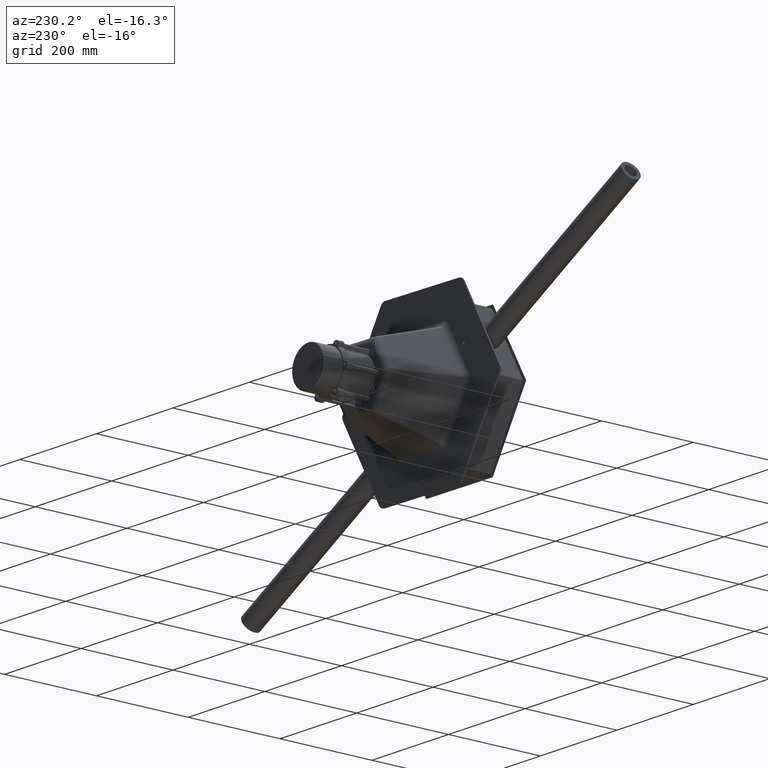
[diagram: clean part render]
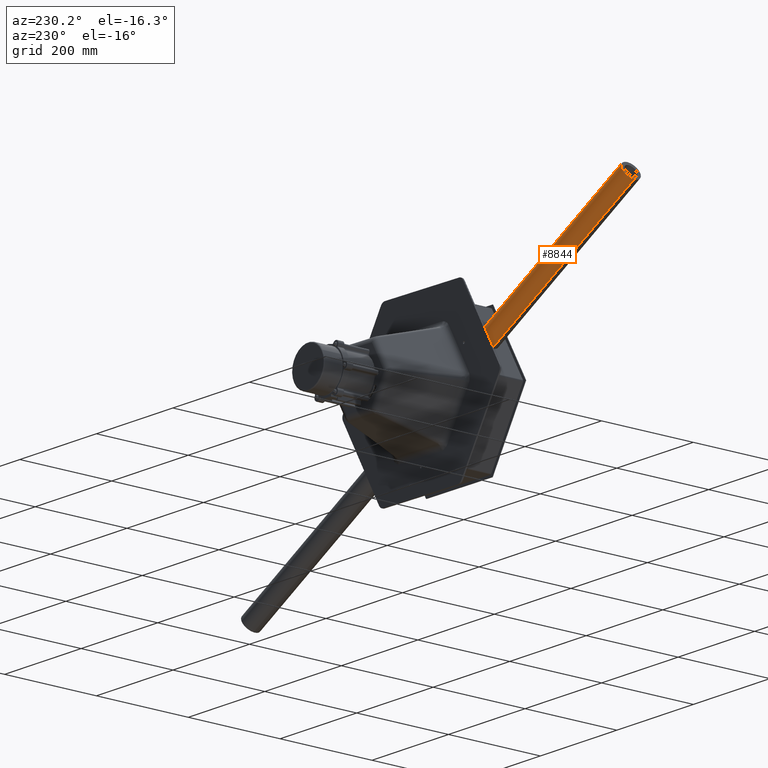
[diagram: same view with one face highlighted and labeled with its STEP entity id]
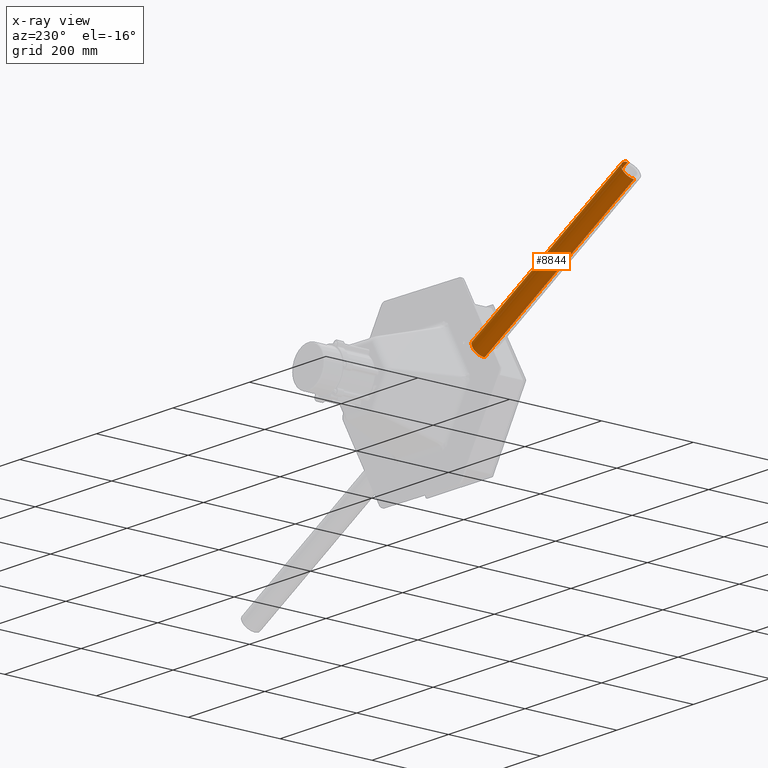
[diagram: x-ray of the same camera — body ghosted, the highlighted face saturated]
A machine part, auxiliary view. The second image highlights one B-rep face of the part: STEP entity #8844.
The next image is the same camera in x-ray: the body ghosted, the highlighted face saturated — about 0% of this face is hidden behind the body in this view.
In plain terms, the highlighted cylindrical surface (edge-blend (fillet) strip) has radius 20 mm, axis along (0.8688, -0, -0.4951).
Its self-contained STEP definition (entity closure, byte-faithful):
#1101 = VECTOR ( 'NONE', #25241, 1000.000000000000000 ) ;
#1162 = AXIS2_PLACEMENT_3D ( 'NONE', #2189, #33327, #15202 ) ;
#1877 = VECTOR ( 'NONE', #29194, 1000.000000000000000 ) ;
#2189 = CARTESIAN_POINT ( 'NONE',  ( 0.0000000000000000000, 0.0000000000000000000, 450.0000000000000000 ) ) ;
#4011 = CARTESIAN_POINT ( 'NONE',  ( 20.00000000000000000, 2.449293598294706513E-15, 0.0000000000000000000 ) ) ;
#5266 = ORIENTED_EDGE ( 'NONE', *, *, #26385, .F. ) ;
#7030 = AXIS2_PLACEMENT_3D ( 'NONE', #9906, #28036, #12507 ) ;
#8844 = ADVANCED_FACE ( 'NONE', ( #17655 ), #30645, .T. ) ;
#9906 = CARTESIAN_POINT ( 'NONE',  ( 0.0000000000000000000, 0.0000000000000000000, 450.0000000000000000 ) ) ;
#11139 = EDGE_CURVE ( 'NONE', #29427, #31547, #24218, .T. ) ;
#11766 = CARTESIAN_POINT ( 'NONE',  ( 0.0000000000000000000, 0.0000000000000000000, 0.0000000000000000000 ) ) ;
#12507 = DIRECTION ( 'NONE',  ( 1.000000000000000000, 0.0000000000000000000, 0.0000000000000000000 ) ) ;
#14059 = ORIENTED_EDGE ( 'NONE', *, *, #30014, .F. ) ;
#14354 = DIRECTION ( 'NONE',  ( 1.000000000000000000, 0.0000000000000000000, 0.0000000000000000000 ) ) ;
#14881 = ORIENTED_EDGE ( 'NONE', *, *, #26082, .T. ) ;
#15202 = DIRECTION ( 'NONE',  ( -1.000000000000000000, 0.0000000000000000000, 0.0000000000000000000 ) ) ;
#16249 = CARTESIAN_POINT ( 'NONE',  ( -20.00000000000000000, 0.0000000000000000000, 450.0000000000000000 ) ) ;
#17655 = FACE_OUTER_BOUND ( 'NONE', #27016, .T. ) ;
#18005 = ORIENTED_EDGE ( 'NONE', *, *, #11139, .T. ) ;
#20187 = VERTEX_POINT ( 'NONE', #30187 ) ;
#22544 = LINE ( 'NONE', #16249, #1877 ) ;
#22551 = CARTESIAN_POINT ( 'NONE',  ( -20.00000000000000000, 0.0000000000000000000, 450.0000000000000000 ) ) ;
#24218 = CIRCLE ( 'NONE', #32455, 20.00000000000000000 ) ;
#25241 = DIRECTION ( 'NONE',  ( -0.0000000000000000000, -0.0000000000000000000, -1.000000000000000000 ) ) ;
#25301 = CARTESIAN_POINT ( 'NONE',  ( -20.00000000000000000, 0.0000000000000000000, 0.0000000000000000000 ) ) ;
#26082 = EDGE_CURVE ( 'NONE', #20187, #29427, #28671, .T. ) ;
#26385 = EDGE_CURVE ( 'NONE', #32360, #31547, #22544, .T. ) ;
#27016 = EDGE_LOOP ( 'NONE', ( #14059, #14881, #18005, #5266 ) ) ;
#27856 = CARTESIAN_POINT ( 'NONE',  ( 20.00000000000000000, 2.449293598294706513E-15, 450.0000000000000000 ) ) ;
#28036 = DIRECTION ( 'NONE',  ( 0.0000000000000000000, 0.0000000000000000000, 1.000000000000000000 ) ) ;
#28671 = LINE ( 'NONE', #27856, #1101 ) ;
#29194 = DIRECTION ( 'NONE',  ( -0.0000000000000000000, -0.0000000000000000000, -1.000000000000000000 ) ) ;
#29427 = VERTEX_POINT ( 'NONE', #4011 ) ;
#29900 = DIRECTION ( 'NONE',  ( 0.0000000000000000000, 0.0000000000000000000, 1.000000000000000000 ) ) ;
#30014 = EDGE_CURVE ( 'NONE', #20187, #32360, #30135, .T. ) ;
#30135 = CIRCLE ( 'NONE', #7030, 20.00000000000000000 ) ;
#30187 = CARTESIAN_POINT ( 'NONE',  ( 20.00000000000000000, 2.449293598294706513E-15, 450.0000000000000000 ) ) ;
#30645 = CYLINDRICAL_SURFACE ( 'NONE', #1162, 20.00000000000000000 ) ;
#31547 = VERTEX_POINT ( 'NONE', #25301 ) ;
#32360 = VERTEX_POINT ( 'NONE', #22551 ) ;
#32455 = AXIS2_PLACEMENT_3D ( 'NONE', #11766, #29900, #14354 ) ;
#33327 = DIRECTION ( 'NONE',  ( -0.0000000000000000000, -0.0000000000000000000, -1.000000000000000000 ) ) ;